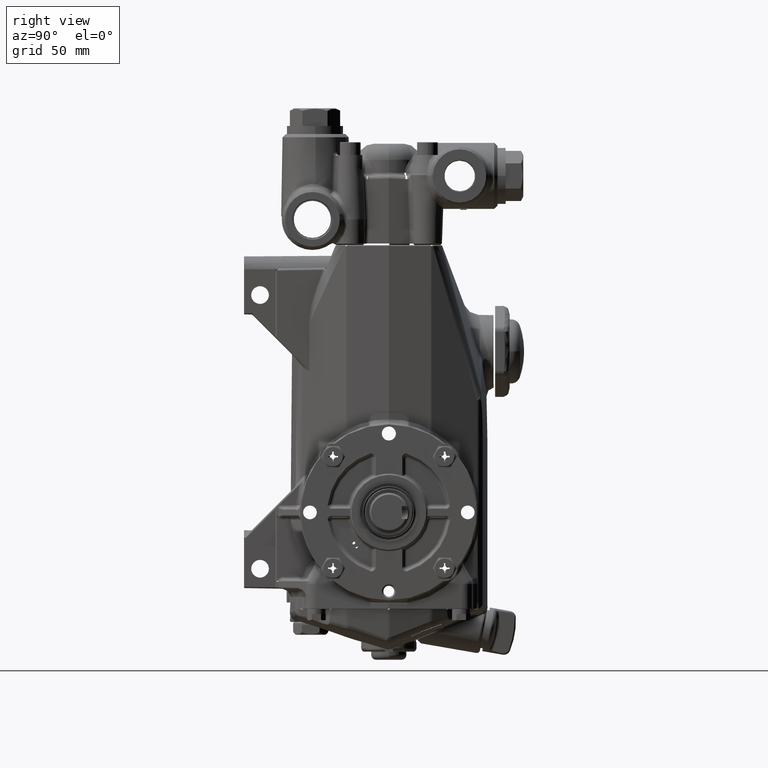
[diagram: clean part render]
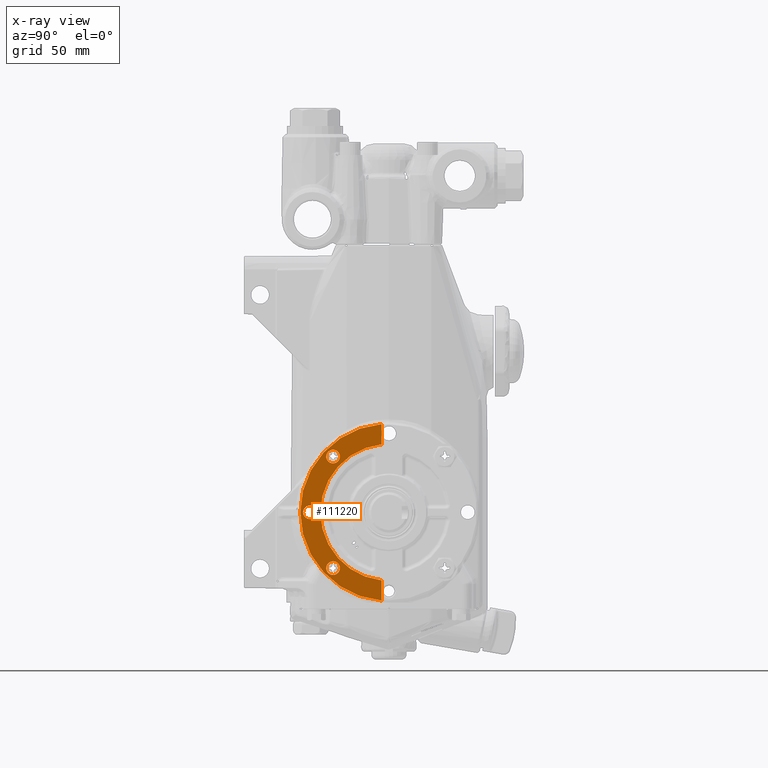
[diagram: x-ray — body ghosted, one internal face saturated and labeled with its STEP entity id]
A machine part, right view, then the same camera in x-ray: the body is ghosted and one INTERNAL B-rep face — a face not visible from any outside direction — is saturated and labeled: STEP entity #111220.
In plain terms, the highlighted planar face has unit normal (-1, 0, 0).
Its self-contained STEP definition (entity closure, byte-faithful):
#154 = EDGE_CURVE ( 'NONE', #16220, #80232, #62088, .T. ) ;
#1351 = CARTESIAN_POINT ( 'NONE',  ( 3.340551181102362488, -0.1771653543307090961, -2.158094486982368387 ) ) ;
#3456 = AXIS2_PLACEMENT_3D ( 'NONE', #119309, #78578, #66715 ) ;
#9019 = FACE_BOUND ( 'NONE', #94354, .T. ) ;
#9331 = EDGE_LOOP ( 'NONE', ( #111922, #106571 ) ) ;
#10218 = CIRCLE ( 'NONE', #3456, 1.673228346456702376 ) ;
#10675 = CARTESIAN_POINT ( 'NONE',  ( 3.340551181102362488, -1.364103632997683890, 1.364103632997668125 ) ) ;
#14579 = DIRECTION ( 'NONE',  ( -5.551115123125822145E-17, -1.578284616093531844E-30, -1.000000000000000000 ) ) ;
#14891 = CARTESIAN_POINT ( 'NONE',  ( 3.340551181102359379, -0.1771653543307091516, -1.663822567646895401 ) ) ;
#15403 = CIRCLE ( 'NONE', #71441, 0.1673228346456702431 ) ;
#16195 = CIRCLE ( 'NONE', #125847, 2.165354330708673114 ) ;
#16220 = VERTEX_POINT ( 'NONE', #132672 ) ;
#17039 = AXIS2_PLACEMENT_3D ( 'NONE', #27656, #68957, #78774 ) ;
#19601 = AXIS2_PLACEMENT_3D ( 'NONE', #134867, #123670, #70412 ) ;
#20879 = ORIENTED_EDGE ( 'NONE', *, *, #133866, .T. ) ;
#22566 = CIRCLE ( 'NONE', #116585, 0.1673228346456701321 ) ;
#23086 = EDGE_CURVE ( 'NONE', #75849, #45889, #39180, .T. ) ;
#23362 = VERTEX_POINT ( 'NONE', #1351 ) ;
#27656 = CARTESIAN_POINT ( 'NONE',  ( 3.340551181102362488, -1.364103632997668347, -1.364103632997682114 ) ) ;
#27730 = DIRECTION ( 'NONE',  ( -1.000000000000000000, 9.603168185200854772E-32, 5.551115123125782702E-17 ) ) ;
#30749 = DIRECTION ( 'NONE',  ( -5.551115123125822145E-17, -1.578284616093531493E-30, -1.000000000000000000 ) ) ;
#31107 = CARTESIAN_POINT ( 'NONE',  ( 3.340551181102362488, -1.929133858267727097, 0.1673228346456696880 ) ) ;
#31548 = CARTESIAN_POINT ( 'NONE',  ( 3.340551181102362488, -0.1771653543307091516, 2.158094486982371496 ) ) ;
#32170 = DIRECTION ( 'NONE',  ( -1.000000000000000000, 9.603168185200854772E-32, 5.551115123125782702E-17 ) ) ;
#34056 = ORIENTED_EDGE ( 'NONE', *, *, #50353, .T. ) ;
#35818 = DIRECTION ( 'NONE',  ( 0.000000000000000000, 0.000000000000000000, -1.000000000000000000 ) ) ;
#37203 = CIRCLE ( 'NONE', #102193, 0.1673228346456701321 ) ;
#37253 = ORIENTED_EDGE ( 'NONE', *, *, #127357, .F. ) ;
#38006 = ORIENTED_EDGE ( 'NONE', *, *, #135215, .F. ) ;
#38781 = CARTESIAN_POINT ( 'NONE',  ( 3.340551181102362488, -1.364103632997683890, 1.531426467643338007 ) ) ;
#39180 = CIRCLE ( 'NONE', #106288, 0.1673228346456702431 ) ;
#39589 = CARTESIAN_POINT ( 'NONE',  ( 3.340551181102362488, -1.364103632997668347, -1.531426467643351996 ) ) ;
#45889 = VERTEX_POINT ( 'NONE', #124804 ) ;
#50353 = EDGE_CURVE ( 'NONE', #45889, #75849, #15403, .T. ) ;
#52585 = VERTEX_POINT ( 'NONE', #31548 ) ;
#58531 = CARTESIAN_POINT ( 'NONE',  ( 3.340551181102362488, -1.364103632997683890, 1.196780798351998021 ) ) ;
#59823 = VECTOR ( 'NONE', #14579, 39.37007874015748143 ) ;
#62088 = CIRCLE ( 'NONE', #19601, 0.1673228346456699933 ) ;
#62254 = FACE_OUTER_BOUND ( 'NONE', #76216, .T. ) ;
#62943 = CARTESIAN_POINT ( 'NONE',  ( 3.340551181102362488, 0.000000000000000000, -5.463695987328526437E-16 ) ) ;
#64609 = DIRECTION ( 'NONE',  ( 0.000000000000000000, 0.000000000000000000, -1.000000000000000000 ) ) ;
#66715 = DIRECTION ( 'NONE',  ( 0.000000000000000000, -1.578284616093531844E-30, -1.000000000000000000 ) ) ;
#67147 = LINE ( 'NONE', #88850, #59823 ) ;
#67583 = EDGE_CURVE ( 'NONE', #80232, #16220, #77412, .T. ) ;
#67759 = ORIENTED_EDGE ( 'NONE', *, *, #71955, .F. ) ;
#68957 = DIRECTION ( 'NONE',  ( -1.000000000000000000, 9.603168185200854772E-32, 5.551115123125782702E-17 ) ) ;
#70375 = EDGE_LOOP ( 'NONE', ( #126071, #20879 ) ) ;
#70412 = DIRECTION ( 'NONE',  ( 0.000000000000000000, 0.000000000000000000, -1.000000000000000000 ) ) ;
#71314 = CARTESIAN_POINT ( 'NONE',  ( 3.340551181102359379, -0.1771653543307090961, 1.663822567646894512 ) ) ;
#71441 = AXIS2_PLACEMENT_3D ( 'NONE', #123701, #27730, #113183 ) ;
#71955 = EDGE_CURVE ( 'NONE', #52585, #126159, #67147, .T. ) ;
#73856 = AXIS2_PLACEMENT_3D ( 'NONE', #62943, #105683, #30749 ) ;
#75470 = ORIENTED_EDGE ( 'NONE', *, *, #23086, .T. ) ;
#75849 = VERTEX_POINT ( 'NONE', #31107 ) ;
#76216 = EDGE_LOOP ( 'NONE', ( #37253, #67759, #132566, #38006 ) ) ;
#77412 = CIRCLE ( 'NONE', #17039, 0.1673228346456699933 ) ;
#78578 = DIRECTION ( 'NONE',  ( 1.000000000000000000, -9.603168185200854772E-32, -5.551115123125782702E-17 ) ) ;
#78774 = DIRECTION ( 'NONE',  ( 0.000000000000000000, 0.000000000000000000, -1.000000000000000000 ) ) ;
#79340 = DIRECTION ( 'NONE',  ( -5.551115123125822145E-17, -1.578284616093531844E-30, -1.000000000000000000 ) ) ;
#80232 = VERTEX_POINT ( 'NONE', #39589 ) ;
#80874 = VERTEX_POINT ( 'NONE', #38781 ) ;
#82608 = CARTESIAN_POINT ( 'NONE',  ( 3.340551181102362488, -1.364103632997683890, 1.364103632997668125 ) ) ;
#85399 = CARTESIAN_POINT ( 'NONE',  ( 3.340551181102359379, -0.1771653543307091516, -1.663822567646895401 ) ) ;
#85445 = VECTOR ( 'NONE', #79340, 39.37007874015748143 ) ;
#87540 = DIRECTION ( 'NONE',  ( 0.000000000000000000, -1.578284616093531844E-30, -1.000000000000000000 ) ) ;
#87795 = LINE ( 'NONE', #14891, #85445 ) ;
#88850 = CARTESIAN_POINT ( 'NONE',  ( 3.340551181102362488, -0.1771653543307091516, 2.158094486982371496 ) ) ;
#89038 = CARTESIAN_POINT ( 'NONE',  ( 3.340551181102362488, -1.929133858267727097, -5.463695987328526437E-16 ) ) ;
#94354 = EDGE_LOOP ( 'NONE', ( #34056, #75470 ) ) ;
#94860 = EDGE_CURVE ( 'NONE', #23362, #52585, #16195, .T. ) ;
#98052 = CARTESIAN_POINT ( 'NONE',  ( 3.340551181102362488, 0.000000000000000000, -5.463695987328526437E-16 ) ) ;
#102193 = AXIS2_PLACEMENT_3D ( 'NONE', #82608, #32170, #117646 ) ;
#104750 = EDGE_CURVE ( 'NONE', #124180, #80874, #37203, .T. ) ;
#105272 = DIRECTION ( 'NONE',  ( -1.000000000000000000, 9.603168185200854772E-32, 5.551115123125782702E-17 ) ) ;
#105683 = DIRECTION ( 'NONE',  ( -1.000000000000000000, 9.603168185200853678E-32, 5.551115123125822145E-17 ) ) ;
#106288 = AXIS2_PLACEMENT_3D ( 'NONE', #89038, #131803, #35818 ) ;
#106571 = ORIENTED_EDGE ( 'NONE', *, *, #154, .T. ) ;
#111220 = ADVANCED_FACE ( 'NONE', ( #126726, #62254, #9019, #116222 ), #127410, .F. ) ;
#111922 = ORIENTED_EDGE ( 'NONE', *, *, #67583, .T. ) ;
#113183 = DIRECTION ( 'NONE',  ( 0.000000000000000000, 0.000000000000000000, -1.000000000000000000 ) ) ;
#116222 = FACE_BOUND ( 'NONE', #70375, .T. ) ;
#116585 = AXIS2_PLACEMENT_3D ( 'NONE', #10675, #105272, #64609 ) ;
#117646 = DIRECTION ( 'NONE',  ( 0.000000000000000000, 0.000000000000000000, -1.000000000000000000 ) ) ;
#119309 = CARTESIAN_POINT ( 'NONE',  ( 3.340551181102362488, 0.000000000000000000, -5.463695987328526437E-16 ) ) ;
#120267 = VERTEX_POINT ( 'NONE', #85399 ) ;
#123670 = DIRECTION ( 'NONE',  ( -1.000000000000000000, 9.603168185200854772E-32, 5.551115123125782702E-17 ) ) ;
#123701 = CARTESIAN_POINT ( 'NONE',  ( 3.340551181102362488, -1.929133858267727097, -5.463695987328526437E-16 ) ) ;
#124180 = VERTEX_POINT ( 'NONE', #58531 ) ;
#124804 = CARTESIAN_POINT ( 'NONE',  ( 3.340551181102362488, -1.929133858267727097, -0.1673228346456707705 ) ) ;
#125847 = AXIS2_PLACEMENT_3D ( 'NONE', #98052, #128252, #87540 ) ;
#126071 = ORIENTED_EDGE ( 'NONE', *, *, #104750, .T. ) ;
#126159 = VERTEX_POINT ( 'NONE', #71314 ) ;
#126726 = FACE_BOUND ( 'NONE', #9331, .T. ) ;
#127357 = EDGE_CURVE ( 'NONE', #126159, #120267, #10218, .T. ) ;
#127410 = PLANE ( 'NONE',  #73856 ) ;
#128252 = DIRECTION ( 'NONE',  ( -1.000000000000000000, 9.603168185200854772E-32, 5.551115123125782702E-17 ) ) ;
#131803 = DIRECTION ( 'NONE',  ( -1.000000000000000000, 9.603168185200854772E-32, 5.551115123125782702E-17 ) ) ;
#132566 = ORIENTED_EDGE ( 'NONE', *, *, #94860, .F. ) ;
#132672 = CARTESIAN_POINT ( 'NONE',  ( 3.340551181102362488, -1.364103632997668347, -1.196780798352011788 ) ) ;
#133866 = EDGE_CURVE ( 'NONE', #80874, #124180, #22566, .T. ) ;
#134867 = CARTESIAN_POINT ( 'NONE',  ( 3.340551181102362488, -1.364103632997668347, -1.364103632997682114 ) ) ;
#135215 = EDGE_CURVE ( 'NONE', #120267, #23362, #87795, .T. ) ;